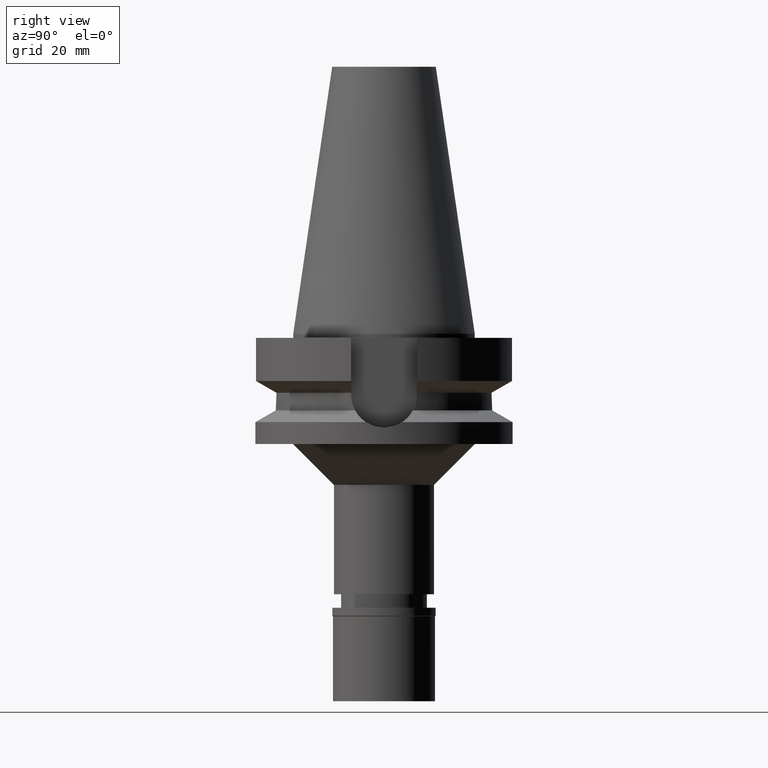
[diagram: clean part render]
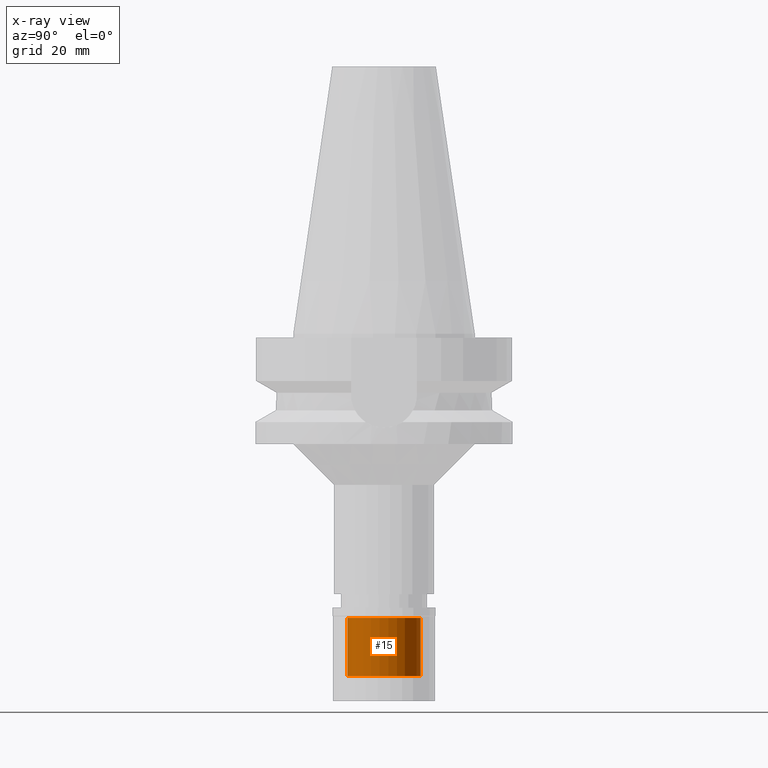
[diagram: x-ray — body ghosted, one internal face saturated and labeled with its STEP entity id]
A machine part, right view, then the same camera in x-ray: the body is ghosted and one INTERNAL B-rep face — a face not visible from any outside direction — is saturated and labeled: STEP entity #15.
In plain terms, the highlighted cylindrical surface (partial cylindrical patch) has radius 9 mm, axis along (0, 0, -1).
Its self-contained STEP definition (entity closure, byte-faithful):
#15 = ADVANCED_FACE ( 'NONE', ( #1419 ), #962, .F. ) ;
#101 = DIRECTION ( 'NONE',  ( 0.0000000000000000000, 0.0000000000000000000, 1.000000000000000000 ) ) ;
#149 = CIRCLE ( 'NONE', #2367, 9.000000000000000000 ) ;
#150 = CARTESIAN_POINT ( 'NONE',  ( 0.0000000000000000000, 9.000000000000000000, -16.69999999999999929 ) ) ;
#196 = LINE ( 'NONE', #1106, #650 ) ;
#294 = CARTESIAN_POINT ( 'NONE',  ( 0.0000000000000000000, -9.000000000000000000, -16.69999999999999929 ) ) ;
#300 = ORIENTED_EDGE ( 'NONE', *, *, #576, .F. ) ;
#449 = AXIS2_PLACEMENT_3D ( 'NONE', #1322, #2027, #2784 ) ;
#456 = VECTOR ( 'NONE', #101, 1000.000000000000000 ) ;
#532 = VERTEX_POINT ( 'NONE', #1337 ) ;
#576 = EDGE_CURVE ( 'NONE', #2653, #532, #1827, .T. ) ;
#579 = EDGE_CURVE ( 'NONE', #1379, #532, #149, .T. ) ;
#641 = DIRECTION ( 'NONE',  ( 0.0000000000000000000, 0.0000000000000000000, 1.000000000000000000 ) ) ;
#650 = VECTOR ( 'NONE', #641, 1000.000000000000000 ) ;
#667 = EDGE_CURVE ( 'NONE', #969, #1379, #196, .T. ) ;
#669 = ORIENTED_EDGE ( 'NONE', *, *, #579, .T. ) ;
#718 = DIRECTION ( 'NONE',  ( 0.0000000000000000000, 0.0000000000000000000, -1.000000000000000000 ) ) ;
#737 = CARTESIAN_POINT ( 'NONE',  ( 0.0000000000000000000, -9.000000000000000000, -2.500000000000000000 ) ) ;
#923 = ORIENTED_EDGE ( 'NONE', *, *, #1914, .T. ) ;
#962 = CYLINDRICAL_SURFACE ( 'NONE', #1713, 9.000000000000000000 ) ;
#969 = VERTEX_POINT ( 'NONE', #294 ) ;
#974 = EDGE_LOOP ( 'NONE', ( #923, #2995, #669, #300 ) ) ;
#1067 = DIRECTION ( 'NONE',  ( 0.0000000000000000000, -1.000000000000000000, 0.0000000000000000000 ) ) ;
#1106 = CARTESIAN_POINT ( 'NONE',  ( 0.0000000000000000000, -9.000000000000000000, -16.69999999999999929 ) ) ;
#1304 = CARTESIAN_POINT ( 'NONE',  ( 0.0000000000000000000, 9.000000000000000000, -16.69999999999999929 ) ) ;
#1322 = CARTESIAN_POINT ( 'NONE',  ( 0.0000000000000000000, 0.0000000000000000000, -16.69999999999999929 ) ) ;
#1337 = CARTESIAN_POINT ( 'NONE',  ( 0.0000000000000000000, 9.000000000000000000, -2.500000000000000000 ) ) ;
#1358 = CIRCLE ( 'NONE', #449, 9.000000000000000000 ) ;
#1367 = CARTESIAN_POINT ( 'NONE',  ( 0.0000000000000000000, 0.0000000000000000000, -2.500000000000000000 ) ) ;
#1379 = VERTEX_POINT ( 'NONE', #737 ) ;
#1419 = FACE_OUTER_BOUND ( 'NONE', #974, .T. ) ;
#1713 = AXIS2_PLACEMENT_3D ( 'NONE', #2850, #718, #3101 ) ;
#1827 = LINE ( 'NONE', #1304, #456 ) ;
#1914 = EDGE_CURVE ( 'NONE', #2653, #969, #1358, .T. ) ;
#2027 = DIRECTION ( 'NONE',  ( 0.0000000000000000000, 0.0000000000000000000, -1.000000000000000000 ) ) ;
#2326 = DIRECTION ( 'NONE',  ( 0.0000000000000000000, 0.0000000000000000000, 1.000000000000000000 ) ) ;
#2367 = AXIS2_PLACEMENT_3D ( 'NONE', #1367, #2326, #1067 ) ;
#2653 = VERTEX_POINT ( 'NONE', #150 ) ;
#2784 = DIRECTION ( 'NONE',  ( 0.0000000000000000000, 1.000000000000000000, 0.0000000000000000000 ) ) ;
#2850 = CARTESIAN_POINT ( 'NONE',  ( 0.0000000000000000000, 0.0000000000000000000, 0.0000000000000000000 ) ) ;
#2995 = ORIENTED_EDGE ( 'NONE', *, *, #667, .T. ) ;
#3101 = DIRECTION ( 'NONE',  ( 0.0000000000000000000, -1.000000000000000000, 0.0000000000000000000 ) ) ;